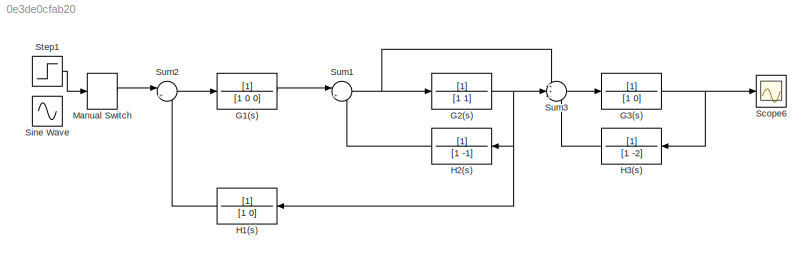
MODEL slx_0e3de0cfab20
KIND model
CONFIG AbsTol = auto
CONFIG EnableMultiTasking = off
CONFIG FixedStep = auto
CONFIG MaxStep = auto
CONFIG MinStep = auto
CONFIG RelTol = 1e-3
CONFIG SampleTimeConstraint = Unconstrained
CONFIG SolverName = VariableStepAuto
CONFIG StartTime = 0.0
CONFIG StopTime = 10.0
BLOCK [TransferFcn] G1(s)
  Denominator = [1 0 0]
BLOCK [TransferFcn] G2(s)
  Denominator = [1 1]
BLOCK [TransferFcn] G3(s)
  Denominator = [1 0]
BLOCK [TransferFcn] H1(s)
  Denominator = [1 0]
BLOCK [TransferFcn] H2(s)
  Denominator = [1 -1]
BLOCK [TransferFcn] H3(s)
  Denominator = [1 -2]
BLOCK [ManualSwitch] Manual Switch
  CurrentSetting = 0
BLOCK [Scope] Scope6
  Floating = off
  NumInputPorts = 1
  ScopeSpecificationString = Simulink.scopes.TimeScopeBlockCfg('CurrentConfiguration', extmgr.ConfigurationSet(extmgr.Configuration('Core','General UI',true),extmgr.Configuration('Core','Source UI',true),extmgr.Configuration('Sources','WiredSimulink',true,'DataLoggingVariableName','ScopeData5'),extmgr.Configuration('Visuals','Time Domain',true,'SerializedDisplays',{struct('MinYLimReal','-1.00000','MaxYLimReal','1.00000','YLab...<+1393ch>
BLOCK [Sin] Sine Wave
  SampleTime = 0
BLOCK [Step] Step1
  SampleTime = 0
  Time = 0
BLOCK [Sum] Sum1
  Inputs = |+-
BLOCK [Sum] Sum2
  Inputs = |+-
BLOCK [Sum] Sum3
  Inputs = ++-
LINE G1(s):1 -> Sum1:1
NET G2(s):1 -> H1(s):1, H2(s):1, Sum3:2
NET G3(s):1 -> H3(s):1, Scope6:1
LINE H1(s):1 -> Sum2:2
LINE H2(s):1 -> Sum1:2
LINE H3(s):1 -> Sum3:3
LINE Manual Switch:1 -> Sum2:1
LINE Step1:1 -> Manual Switch:1
NET Sum1:1 -> G2(s):1, Sum3:1
LINE Sum2:1 -> G1(s):1
LINE Sum3:1 -> G3(s):1
note: NET lines group one-source signal fan-out (src -> all destinations, sorted); 1:1 wires keep LINE
